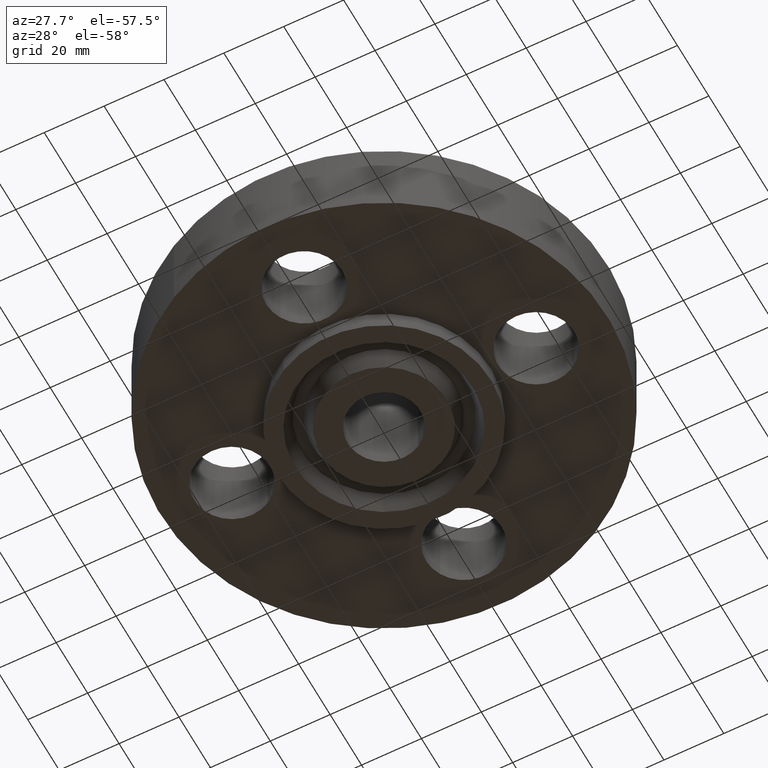
[diagram: clean part render]
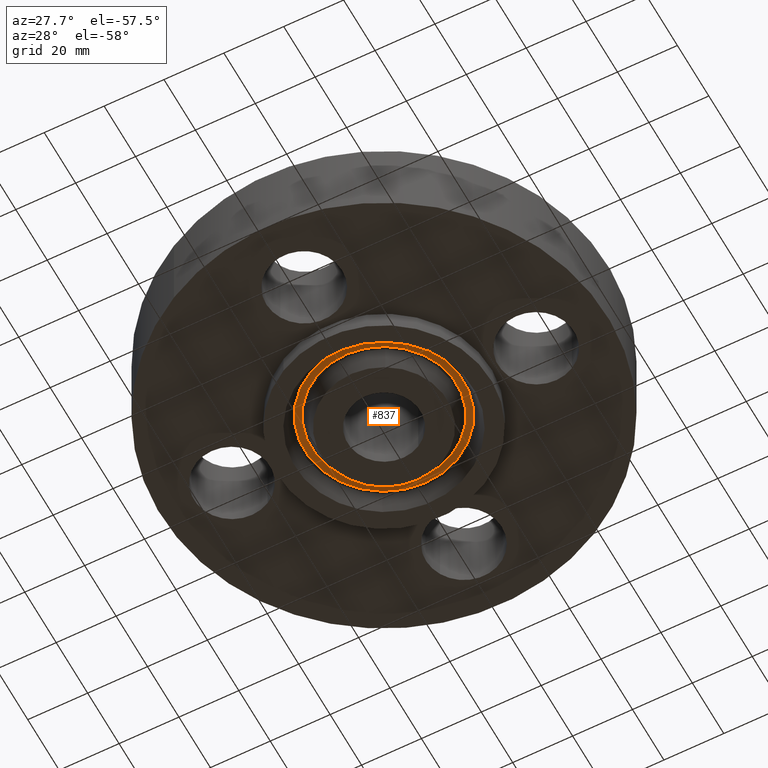
[diagram: same view with one face highlighted and labeled with its STEP entity id]
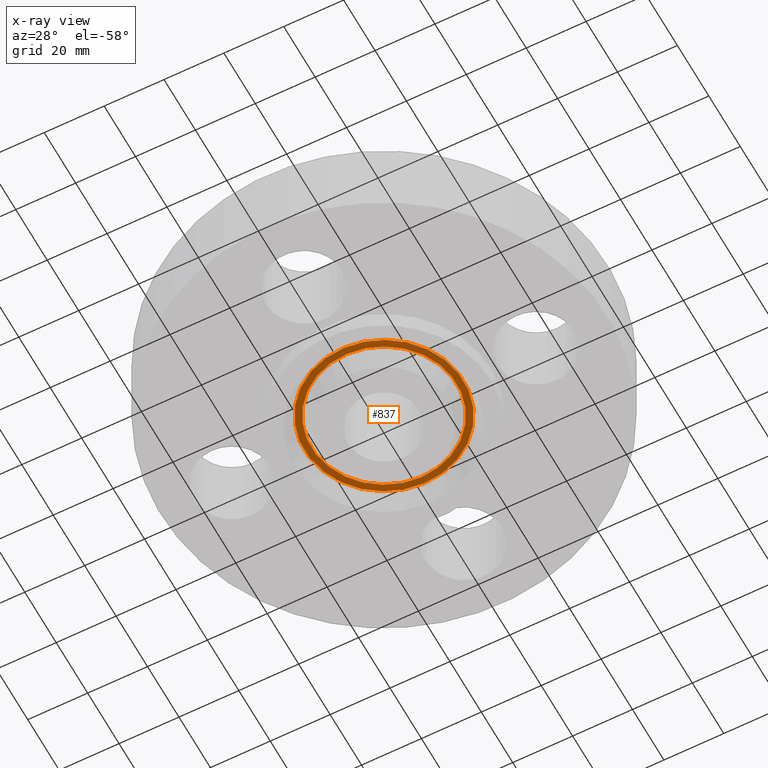
[diagram: x-ray of the same camera — body ghosted, the highlighted face saturated]
A machine part, auxiliary view. The second image highlights one B-rep face of the part: STEP entity #837.
The next image is the same camera in x-ray: the body ghosted, the highlighted face saturated — about 0% of this face is hidden behind the body in this view.
In plain terms, the highlighted planar face has unit normal (0, 0, -1).
Its self-contained STEP definition (entity closure, byte-faithful):
#274=AXIS2_PLACEMENT_3D('Plane Axis2P3D',#271,#272,#273) ;
#743=AXIS2_PLACEMENT_3D('Circle Axis2P3D',#741,#742,$) ;
#762=AXIS2_PLACEMENT_3D('Circle Axis2P3D',#760,#761,$) ;
#821=AXIS2_PLACEMENT_3D('Circle Axis2P3D',#819,#820,$) ;
#830=AXIS2_PLACEMENT_3D('Circle Axis2P3D',#828,#829,$) ;
#271=CARTESIAN_POINT('Axis2P3D Location',(0.,1.40650000001,0.)) ;
#738=CARTESIAN_POINT('Vertex',(0.501173644308,-0.917392202352,-4.37095678986E-017)) ;
#741=CARTESIAN_POINT('Axis2P3D Location',(0.,0.,-4.37095678986E-017)) ;
#745=CARTESIAN_POINT('Vertex',(-0.501173644308,0.917392202352,-4.37095678986E-017)) ;
#760=CARTESIAN_POINT('Axis2P3D Location',(0.,0.,-4.37095678986E-017)) ;
#819=CARTESIAN_POINT('Axis2P3D Location',(0.,0.,0.)) ;
#823=CARTESIAN_POINT('Vertex',(0.457677432904,-0.837772921436,4.80805246885E-017)) ;
#825=CARTESIAN_POINT('Vertex',(-0.457677432904,0.837772921436,4.80805246885E-017)) ;
#828=CARTESIAN_POINT('Axis2P3D Location',(0.,0.,0.)) ;
#272=DIRECTION('Axis2P3D Direction',(0.,0.,-0.0393700787402)) ;
#273=DIRECTION('Axis2P3D XDirection',(0.0393700787402,0.,0.)) ;
#742=DIRECTION('Axis2P3D Direction',(0.,0.,0.0393700787402)) ;
#761=DIRECTION('Axis2P3D Direction',(0.,0.,0.0393700787402)) ;
#820=DIRECTION('Axis2P3D Direction',(0.,0.,-0.0393700787402)) ;
#829=DIRECTION('Axis2P3D Direction',(0.,0.,-0.0393700787402)) ;
#816=ORIENTED_EDGE('',*,*,#764,.F.) ;
#817=ORIENTED_EDGE('',*,*,#747,.F.) ;
#834=ORIENTED_EDGE('',*,*,#827,.T.) ;
#835=ORIENTED_EDGE('',*,*,#832,.T.) ;
#836=FACE_BOUND('',#833,.T.) ;
#837=ADVANCED_FACE('PartBody',(#818,#836),#275,.T.) ;
#744=CIRCLE('generated circle',#743,1.04536284355) ;
#763=CIRCLE('generated circle',#762,1.04536284355) ;
#822=CIRCLE('generated circle',#821,0.954637156453) ;
#831=CIRCLE('generated circle',#830,0.954637156453) ;
#747=EDGE_CURVE('',#739,#746,#744,.T.) ;
#764=EDGE_CURVE('',#746,#739,#763,.T.) ;
#827=EDGE_CURVE('',#824,#826,#822,.F.) ;
#832=EDGE_CURVE('',#826,#824,#831,.F.) ;
#815=EDGE_LOOP('',(#816,#817)) ;
#833=EDGE_LOOP('',(#834,#835)) ;
#818=FACE_OUTER_BOUND('',#815,.T.) ;
#275=PLANE('',#274) ;
#739=VERTEX_POINT('',#738) ;
#746=VERTEX_POINT('',#745) ;
#824=VERTEX_POINT('',#823) ;
#826=VERTEX_POINT('',#825) ;